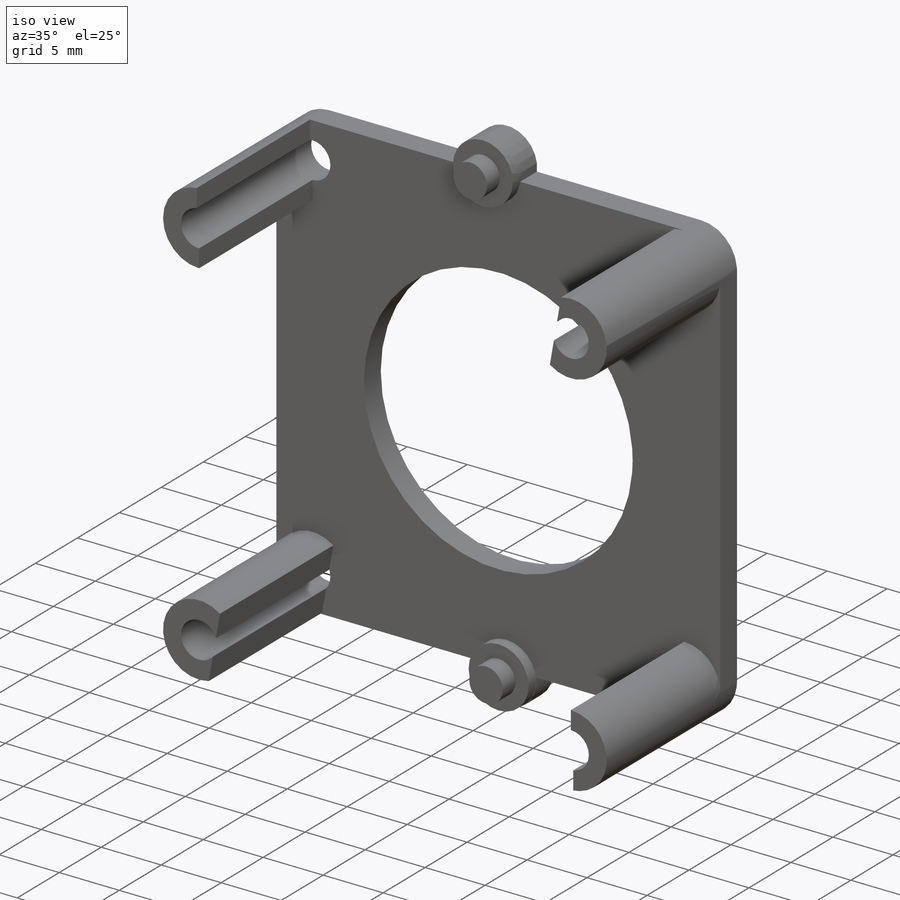
[diagram: iso view]
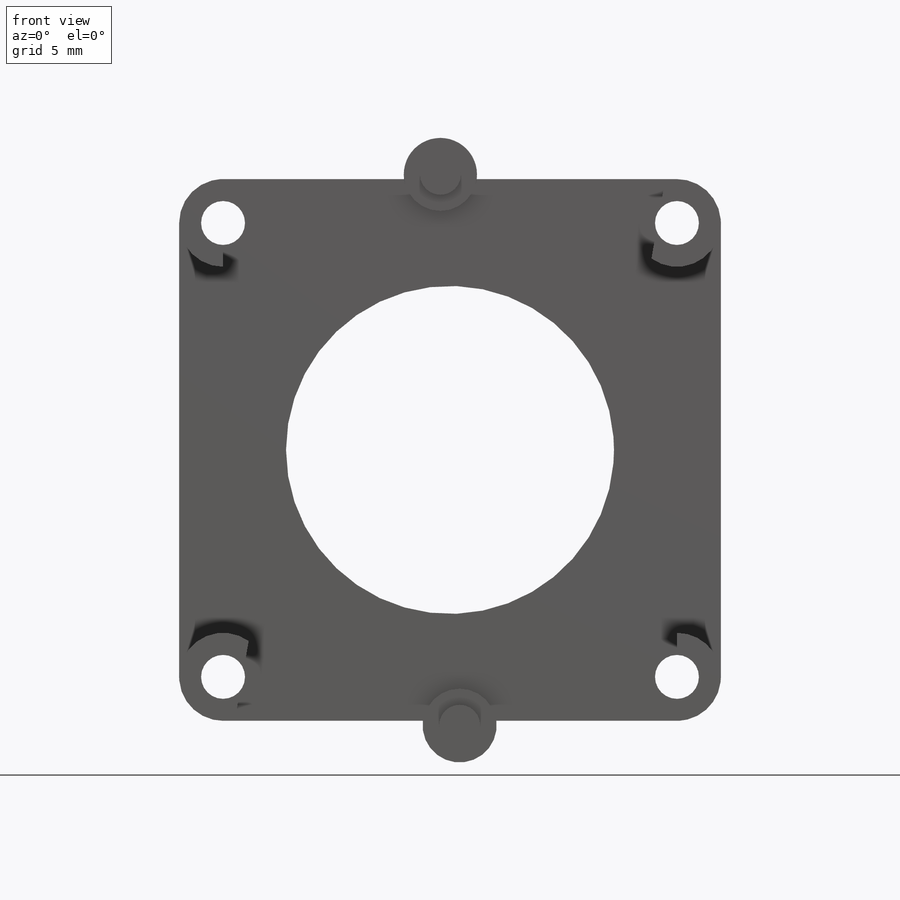
[diagram: front view]
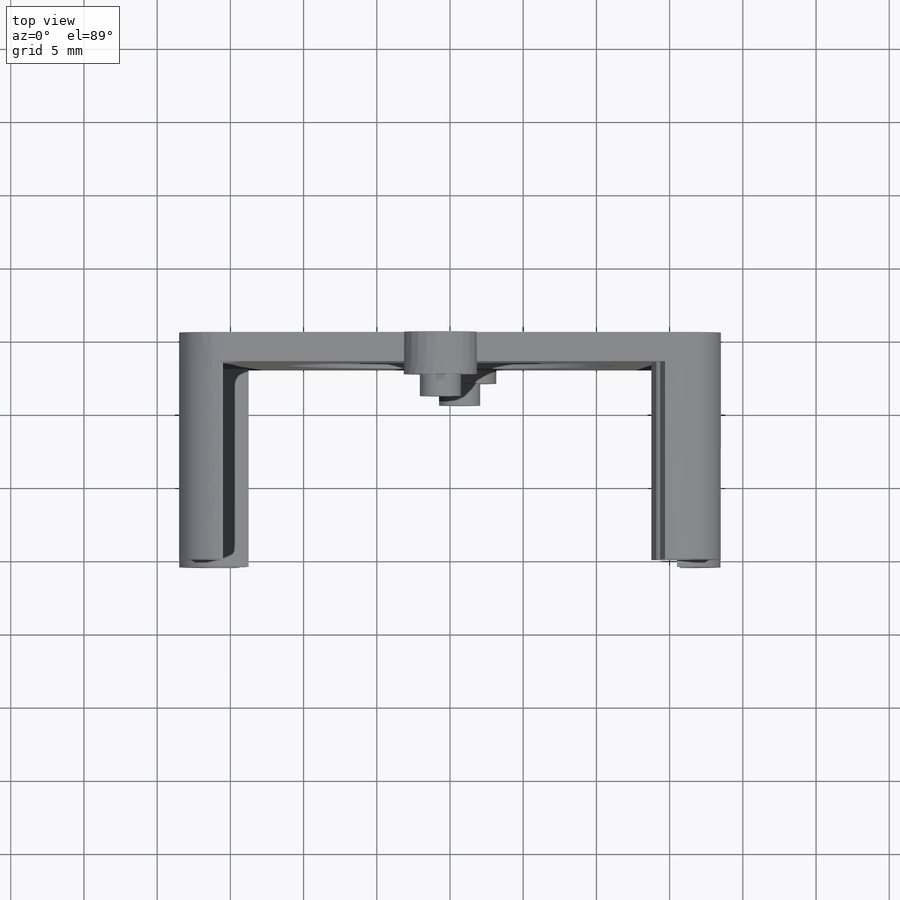
[diagram: top view]
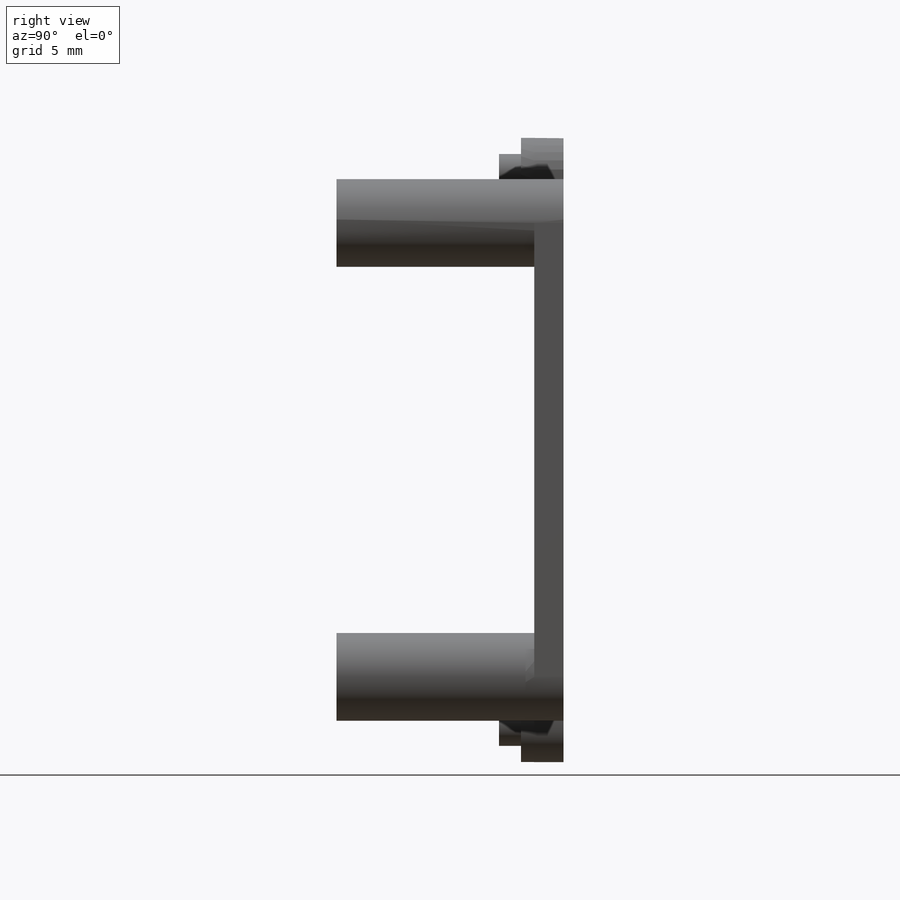
[diagram: right view]
SOLIDWORKS PART (.sldprt)
format: sldprt  version: not decoded by parser v0  size: 326,656 bytes
history: native  units: mm
features: sketch x6, extrude x5, material x1, cut_extrude x1 (+16 scaffold rows collapsed)
feature tree (29):
  scaffold x16  (default folders/planes/origin — collapsed)
  material  "Titanium"
  sketch  "Sketch1"  dims[c1.D1=~15.829735mm c1.D5=~3.751354mm c1.D6=5.0mm c1.D10=~2.917035mm c1.D11=~4.210982mm c2.D1=15.5mm c2.D2=15.5mm c2.D3=15.5mm c2.D4=15.5mm c2.D5=~18.887435mm c2.D6=15.5mm c2.D7=15.5mm c2.D8=15.5mm c2.D9=15.5mm c2.AXIS_DIST=~18.824899mm c2.D10=~17.98666mm c3.D10=93.0deg c4.D10=~18.282258mm c4.ANGLE_AXIS=92.0deg c4.D5=~18.824899mm]
  extrude  "Extrude1"  Depth=2mm
  sketch  "Sketch2"  dims[D1=~2.516202mm]
  extrude  "Extrude2"  Depth=0.9mm
  sketch  "Sketch3"  dims[D1=~1.605648mm]
  extrude  "Extrude3"  Depth=1.5mm
  sketch  "Sketch4"
  extrude  "Extrude4"  Depth=13.5mm
  sketch  "Sketch5"  dims[c1.D1=0.2mm c1.D2=0.2mm c2.D1=0.2mm c2.D3=~36.631546mm c3.D1=0.2mm c3.D2=0.2mm]
  extrude  "Extrude5"  Depth=13.5mm
  sketch  "Sketch6"  dims[c1.D1=0.2mm c1.D2=~179.26093deg c2.D2=0.2mm]
  cut_extrude  "Extrude6"  Depth=13.5mm
decode coverage: 11 of 12 modeling features carry decoded parameters
note: ~ marks probable driven/reference dimensions
note: suppression state not decoded; provenance and decode notes live in map.json
